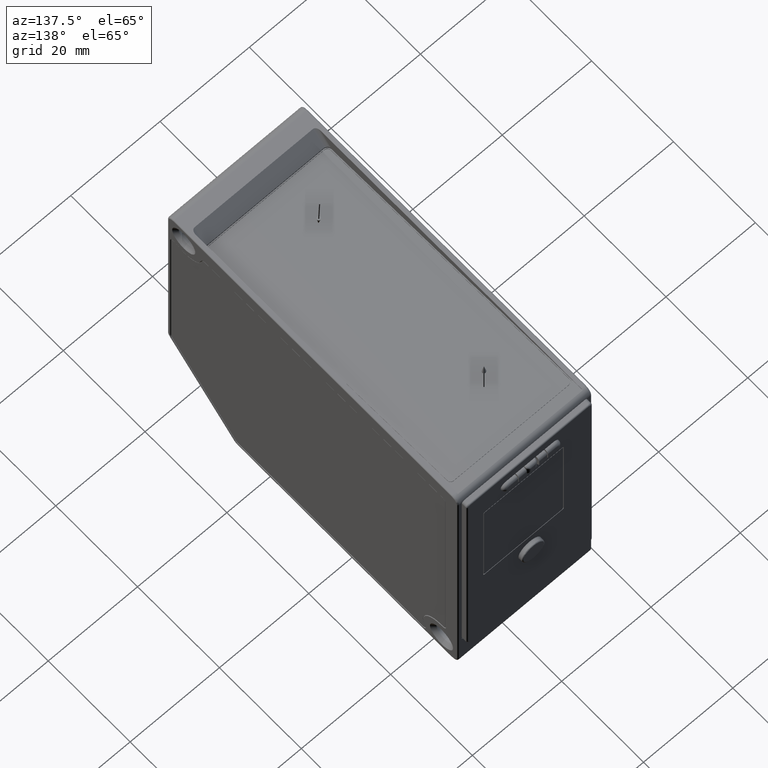
[diagram: clean part render]
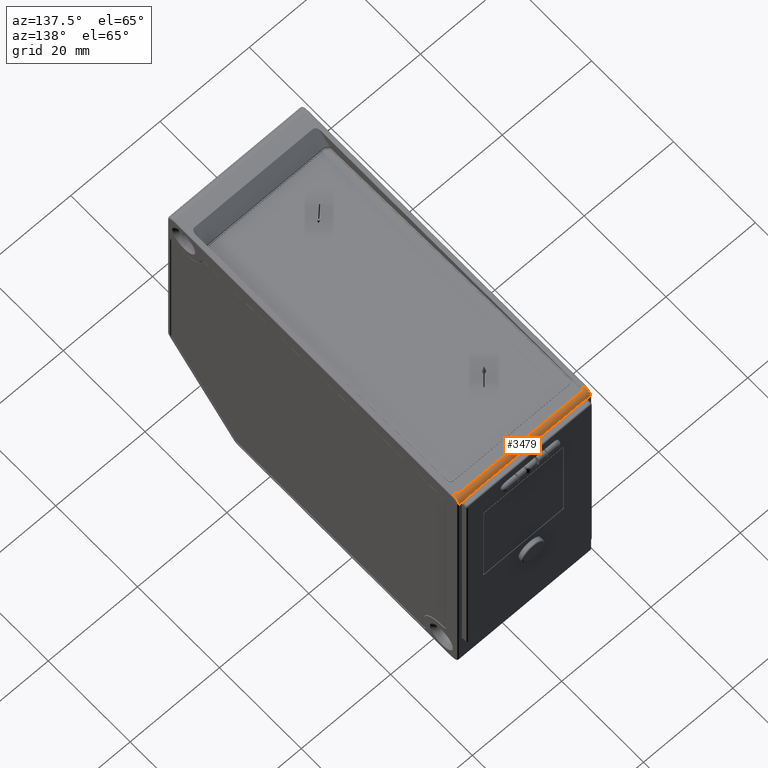
[diagram: same view with one face highlighted and labeled with its STEP entity id]
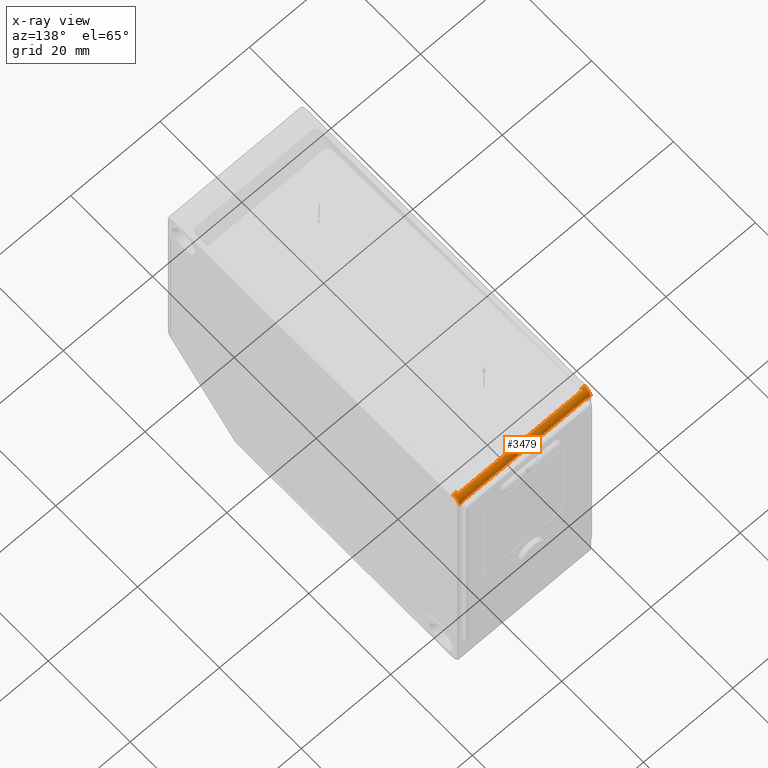
[diagram: x-ray of the same camera — body ghosted, the highlighted face saturated]
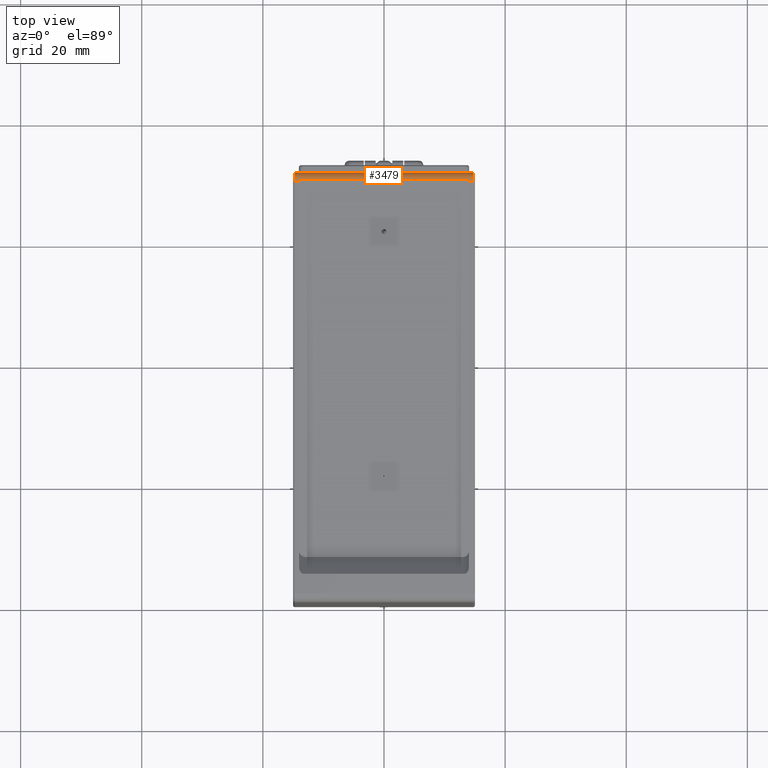
[diagram: same view with one face highlighted and labeled with its STEP entity id]
A machine part, auxiliary view. The second image highlights one B-rep face of the part: STEP entity #3479.
The next image is the same camera in x-ray: the body ghosted, the highlighted face saturated — about 0% of this face is hidden behind the body in this view.
A second angle (top view) of the same face is appended — the face is thin or edge-on in the first view.
In plain terms, the highlighted cylindrical surface (edge-blend (fillet) strip) has radius 1.5 mm, axis along (-1, 0, 0).
Its self-contained STEP definition (entity closure, byte-faithful):
#379 = VERTEX_POINT ( 'NONE', #4323 ) ;
#386 = CARTESIAN_POINT ( 'NONE',  ( 0.5787401574803149318, 2.736220472440945350, 5.335640612625514099E-19 ) ) ;
#558 = B_SPLINE_CURVE_WITH_KNOTS ( 'NONE', 3,
 ( #8336, #1414, #5431, #7482, #2201, #11515 ),
 .UNSPECIFIED., .F., .F.,
 ( 4, 2, 4 ),
 ( 2.305045436800919139E-18, 0.0002924247143832048312, 0.0005848494287664072772 ),
 .UNSPECIFIED. ) ;
#921 = CARTESIAN_POINT ( 'NONE',  ( 0.5511811023622047445, 2.751788119021209233, -0.002088853049536047030 ) ) ;
#1037 = VERTEX_POINT ( 'NONE', #8920 ) ;
#1158 = ORIENTED_EDGE ( 'NONE', *, *, #8312, .T. ) ;
#1251 = DIRECTION ( 'NONE',  ( -1.000000000000000000, 0.000000000000000000, 0.000000000000000000 ) ) ;
#1328 = EDGE_CURVE ( 'NONE', #4798, #3805, #11083, .T. ) ;
#1414 = CARTESIAN_POINT ( 'NONE',  ( 0.5448264137934776263, 2.795275590551181022, -0.05651347058488103564 ) ) ;
#1422 = CIRCLE ( 'NONE', #4570, 0.05905511811023622659 ) ;
#1516 = DIRECTION ( 'NONE',  ( 0.000000000000000000, 0.000000000000000000, -1.000000000000000000 ) ) ;
#1533 = EDGE_CURVE ( 'NONE', #8098, #13094, #6169, .T. ) ;
#1631 = CARTESIAN_POINT ( 'NONE',  ( -0.5415342343404822012, 2.795120818638139770, -0.05457162216788742637 ) ) ;
#1808 = EDGE_CURVE ( 'NONE', #2500, #8318, #10604, .T. ) ;
#1841 = DIRECTION ( 'NONE',  ( 1.000000000000000000, -0.000000000000000000, -0.000000000000000000 ) ) ;
#2165 = DIRECTION ( 'NONE',  ( 0.000000000000000000, 0.000000000000000000, 1.000000000000000000 ) ) ;
#2201 = CARTESIAN_POINT ( 'NONE',  ( 0.5304681380428490911, 2.794748302154798747, -0.05118110236221613818 ) ) ;
#2459 = EDGE_CURVE ( 'NONE', #3343, #379, #11786, .T. ) ;
#2500 = VERTEX_POINT ( 'NONE', #3656 ) ;
#2543 = CARTESIAN_POINT ( 'NONE',  ( -0.5265748031496062520, 2.794748302154798747, -0.05118110236221624226 ) ) ;
#2716 = CARTESIAN_POINT ( 'NONE',  ( -0.5787401574803149318, 2.736220472440945350, 5.335640612625514099E-19 ) ) ;
#2730 = VERTEX_POINT ( 'NONE', #2716 ) ;
#2747 = CARTESIAN_POINT ( 'NONE',  ( 0.5905511811023621549, 2.736220472440945350, 0.000000000000000000 ) ) ;
#2787 = ORIENTED_EDGE ( 'NONE', *, *, #10236, .T. ) ;
#2815 = VERTEX_POINT ( 'NONE', #921 ) ;
#3055 = VERTEX_POINT ( 'NONE', #4533 ) ;
#3223 = CARTESIAN_POINT ( 'NONE',  ( -0.5511811023622046335, 2.736220472440945350, -0.05905511811023622659 ) ) ;
#3343 = VERTEX_POINT ( 'NONE', #10348 ) ;
#3479 = ADVANCED_FACE ( 'NONE', ( #11718 ), #4849, .T. ) ;
#3656 = CARTESIAN_POINT ( 'NONE',  ( -0.5511811023622046335, 2.736220472440945350, 0.000000000000000000 ) ) ;
#3726 = LINE ( 'NONE', #2747, #4105 ) ;
#3805 = VERTEX_POINT ( 'NONE', #2543 ) ;
#3807 = CARTESIAN_POINT ( 'NONE',  ( -0.5477762393981538969, 2.795275590551181466, -0.05905511811023609475 ) ) ;
#3861 = CARTESIAN_POINT ( 'NONE',  ( 0.5787401574803149318, 2.736220472440945350, -0.05905511811023622659 ) ) ;
#3956 = VECTOR ( 'NONE', #1841, 39.37007874015748143 ) ;
#4070 = AXIS2_PLACEMENT_3D ( 'NONE', #3861, #4918, #7888 ) ;
#4105 = VECTOR ( 'NONE', #6768, 39.37007874015748143 ) ;
#4187 = ORIENTED_EDGE ( 'NONE', *, *, #1808, .T. ) ;
#4323 = CARTESIAN_POINT ( 'NONE',  ( -0.5787401574803149318, 2.795275590551181466, -0.05905511811023625435 ) ) ;
#4533 = CARTESIAN_POINT ( 'NONE',  ( 0.5511811023622047445, 2.736220472440945350, 0.000000000000000000 ) ) ;
#4570 = AXIS2_PLACEMENT_3D ( 'NONE', #5663, #10624, #1516 ) ;
#4725 = EDGE_CURVE ( 'NONE', #2730, #2500, #3726, .T. ) ;
#4787 = ORIENTED_EDGE ( 'NONE', *, *, #1328, .T. ) ;
#4798 = VERTEX_POINT ( 'NONE', #9274 ) ;
#4849 = CYLINDRICAL_SURFACE ( 'NONE', #7752, 0.05905511811023622659 ) ;
#4861 = CARTESIAN_POINT ( 'NONE',  ( -0.5448262892574693428, 2.795275590551181022, -0.05651336328137233217 ) ) ;
#4918 = DIRECTION ( 'NONE',  ( -1.000000000000000000, 0.000000000000000000, 0.000000000000000000 ) ) ;
#5073 = DIRECTION ( 'NONE',  ( -1.000000000000000000, 0.000000000000000000, 0.000000000000000000 ) ) ;
#5431 = CARTESIAN_POINT ( 'NONE',  ( 0.5415006993087074783, 2.795119409381050524, -0.05455441166056348296 ) ) ;
#5481 = ORIENTED_EDGE ( 'NONE', *, *, #1533, .T. ) ;
#5587 = CARTESIAN_POINT ( 'NONE',  ( -0.5265748031496062520, 2.794748302154798747, -0.05118110236221624226 ) ) ;
#5663 = CARTESIAN_POINT ( 'NONE',  ( -0.5787401574803149318, 2.736220472440945350, -0.05905511811023622659 ) ) ;
#5829 = DIRECTION ( 'NONE',  ( -1.000000000000000000, 0.000000000000000000, 0.000000000000000000 ) ) ;
#5903 = DIRECTION ( 'NONE',  ( 1.000000000000000000, -0.000000000000000000, -0.000000000000000000 ) ) ;
#6169 = CIRCLE ( 'NONE', #4070, 0.05905511811023622659 ) ;
#6183 = EDGE_CURVE ( 'NONE', #13094, #1037, #8807, .T. ) ;
#6312 = EDGE_CURVE ( 'NONE', #2815, #3055, #9683, .T. ) ;
#6737 = LINE ( 'NONE', #6938, #3956 ) ;
#6768 = DIRECTION ( 'NONE',  ( 1.000000000000000000, -0.000000000000000000, -0.000000000000000000 ) ) ;
#6783 = LINE ( 'NONE', #6990, #12168 ) ;
#6793 = CARTESIAN_POINT ( 'NONE',  ( 0.5787401574803149318, 2.795275590551181466, -0.05905511811023624047 ) ) ;
#6938 = CARTESIAN_POINT ( 'NONE',  ( 0.5905511811023621549, 2.751788119021208789, -0.002088853049535988049 ) ) ;
#6990 = CARTESIAN_POINT ( 'NONE',  ( 0.5905511811023621549, 2.736220472440945350, 0.000000000000000000 ) ) ;
#7231 = AXIS2_PLACEMENT_3D ( 'NONE', #3223, #1251, #2165 ) ;
#7281 = B_SPLINE_CURVE_WITH_KNOTS ( 'NONE', 3,
 ( #5587, #8825, #12862, #1631, #4861, #3807 ),
 .UNSPECIFIED., .F., .F.,
 ( 4, 2, 4 ),
 ( 0.000000000000000000, 0.0002924058920955382047, 0.0005848117841910764093 ),
 .UNSPECIFIED. ) ;
#7387 = ORIENTED_EDGE ( 'NONE', *, *, #2459, .T. ) ;
#7468 = EDGE_CURVE ( 'NONE', #1037, #4798, #558, .T. ) ;
#7482 = CARTESIAN_POINT ( 'NONE',  ( 0.5342307262978724935, 2.794851168694540977, -0.05185910615645025756 ) ) ;
#7752 = AXIS2_PLACEMENT_3D ( 'NONE', #12848, #10010, #8944 ) ;
#7888 = DIRECTION ( 'NONE',  ( 0.000000000000000000, 0.000000000000000000, 1.000000000000000000 ) ) ;
#7952 = DIRECTION ( 'NONE',  ( 0.000000000000000000, 0.000000000000000000, 1.000000000000000000 ) ) ;
#8098 = VERTEX_POINT ( 'NONE', #386 ) ;
#8226 = VECTOR ( 'NONE', #5073, 39.37007874015748143 ) ;
#8237 = CARTESIAN_POINT ( 'NONE',  ( 0.5905511811023621549, 2.794748302154798747, -0.05118110236221654757 ) ) ;
#8312 = EDGE_CURVE ( 'NONE', #3055, #8098, #6783, .T. ) ;
#8318 = VERTEX_POINT ( 'NONE', #10815 ) ;
#8336 = CARTESIAN_POINT ( 'NONE',  ( 0.5477762393981538969, 2.795275590551181466, -0.05905511811023608781 ) ) ;
#8787 = ORIENTED_EDGE ( 'NONE', *, *, #11434, .F. ) ;
#8807 = LINE ( 'NONE', #12704, #9905 ) ;
#8811 = DIRECTION ( 'NONE',  ( -1.000000000000000000, 0.000000000000000000, 0.000000000000000000 ) ) ;
#8825 = CARTESIAN_POINT ( 'NONE',  ( -0.5304679465447603715, 2.794748302154798303, -0.05118110236221613818 ) ) ;
#8920 = CARTESIAN_POINT ( 'NONE',  ( 0.5477762393981538969, 2.795275590551181466, -0.05905511811023608781 ) ) ;
#8941 = ORIENTED_EDGE ( 'NONE', *, *, #9509, .T. ) ;
#8944 = DIRECTION ( 'NONE',  ( 0.000000000000000000, 0.000000000000000000, 1.000000000000000000 ) ) ;
#9274 = CARTESIAN_POINT ( 'NONE',  ( 0.5265748031496062520, 2.794748302154798747, -0.05118110236221633941 ) ) ;
#9509 = EDGE_CURVE ( 'NONE', #3805, #3343, #7281, .T. ) ;
#9683 = CIRCLE ( 'NONE', #12644, 0.05905511811023622659 ) ;
#9820 = DIRECTION ( 'NONE',  ( 1.000000000000000000, -0.000000000000000000, -0.000000000000000000 ) ) ;
#9905 = VECTOR ( 'NONE', #5829, 39.37007874015748143 ) ;
#10010 = DIRECTION ( 'NONE',  ( -1.000000000000000000, 0.000000000000000000, 0.000000000000000000 ) ) ;
#10236 = EDGE_CURVE ( 'NONE', #8318, #2815, #6737, .T. ) ;
#10247 = ORIENTED_EDGE ( 'NONE', *, *, #6183, .T. ) ;
#10338 = VECTOR ( 'NONE', #8811, 39.37007874015748143 ) ;
#10348 = CARTESIAN_POINT ( 'NONE',  ( -0.5477762393981538969, 2.795275590551181466, -0.05905511811023609475 ) ) ;
#10604 = CIRCLE ( 'NONE', #7231, 0.05905511811023622659 ) ;
#10624 = DIRECTION ( 'NONE',  ( -1.000000000000000000, -0.000000000000000000, -0.000000000000000000 ) ) ;
#10815 = CARTESIAN_POINT ( 'NONE',  ( -0.5511811023622046335, 2.751788119021209233, -0.002088853049536047030 ) ) ;
#11083 = LINE ( 'NONE', #8237, #8226 ) ;
#11434 = EDGE_CURVE ( 'NONE', #2730, #379, #1422, .T. ) ;
#11515 = CARTESIAN_POINT ( 'NONE',  ( 0.5265748031496062520, 2.794748302154798747, -0.05118110236221633941 ) ) ;
#11718 = FACE_OUTER_BOUND ( 'NONE', #12261, .T. ) ;
#11786 = LINE ( 'NONE', #12707, #10338 ) ;
#12168 = VECTOR ( 'NONE', #9820, 39.37007874015748143 ) ;
#12258 = ORIENTED_EDGE ( 'NONE', *, *, #7468, .T. ) ;
#12261 = EDGE_LOOP ( 'NONE', ( #10247, #12258, #4787, #8941, #7387, #8787, #12526, #4187, #2787, #12834, #1158, #5481 ) ) ;
#12526 = ORIENTED_EDGE ( 'NONE', *, *, #4725, .T. ) ;
#12644 = AXIS2_PLACEMENT_3D ( 'NONE', #12975, #5903, #7952 ) ;
#12704 = CARTESIAN_POINT ( 'NONE',  ( 0.5905511811023621549, 2.795275590551181466, -0.05905511811023622659 ) ) ;
#12707 = CARTESIAN_POINT ( 'NONE',  ( 0.5905511811023621549, 2.795275590551181466, -0.05905511811023622659 ) ) ;
#12834 = ORIENTED_EDGE ( 'NONE', *, *, #6312, .T. ) ;
#12848 = CARTESIAN_POINT ( 'NONE',  ( 0.5905511811023621549, 2.736220472440945350, -0.05905511811023622659 ) ) ;
#12862 = CARTESIAN_POINT ( 'NONE',  ( -0.5342672183617044324, 2.794852344884695583, -0.05186790364604888792 ) ) ;
#12975 = CARTESIAN_POINT ( 'NONE',  ( 0.5511811023622047445, 2.736220472440945350, -0.05905511811023622659 ) ) ;
#13094 = VERTEX_POINT ( 'NONE', #6793 ) ;